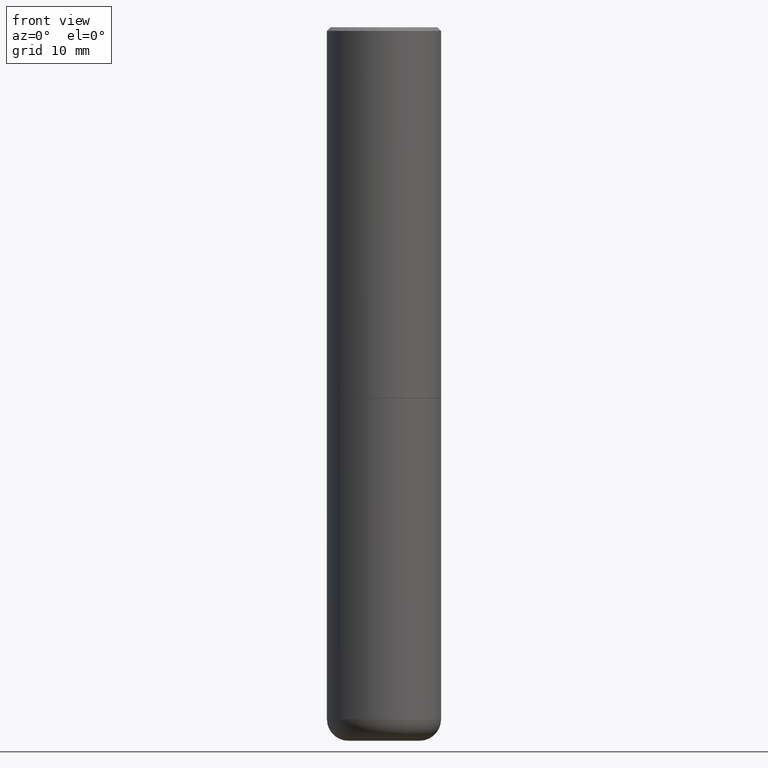
[diagram: clean part render]
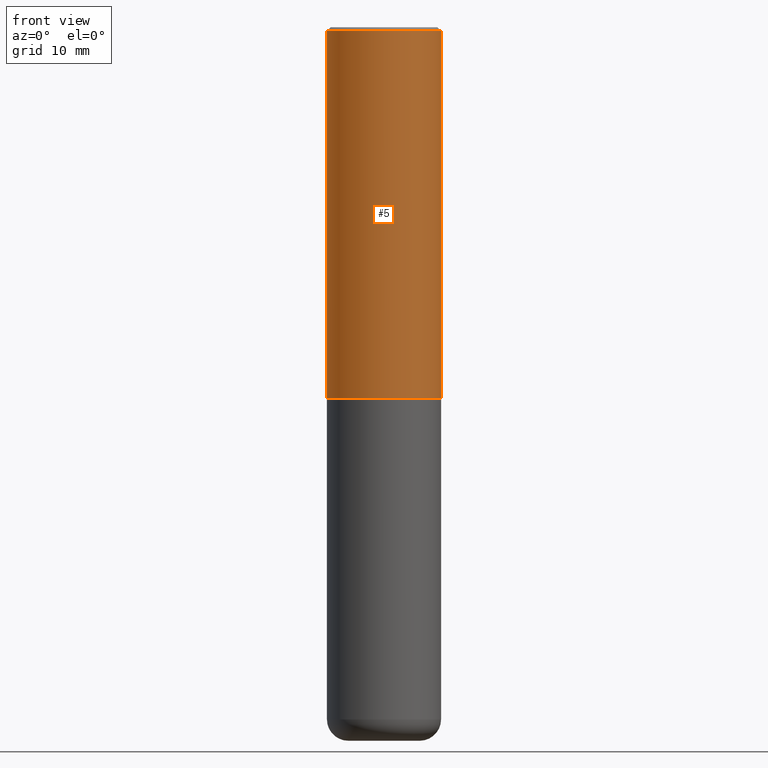
[diagram: same view with one face highlighted and labeled with its STEP entity id]
A machine part, front view. The second image highlights one B-rep face of the part: STEP entity #5.
In plain terms, the highlighted cylindrical surface (partial cylindrical patch) has radius 7.9997 mm, axis along (-0, 0, 1).
Its self-contained STEP definition (entity closure, byte-faithful):
#5 = ADVANCED_FACE ( 'NONE', ( #23 ), #113, .T. ) ;
#8 = EDGE_LOOP ( 'NONE', ( #165, #135, #241, #230 ) ) ;
#23 = FACE_OUTER_BOUND ( 'NONE', #8, .T. ) ;
#26 = DIRECTION ( 'NONE',  ( -2.445468806185136877E-29, 3.491481338843145188E-15, 1.000000000000000000 ) ) ;
#54 = EDGE_CURVE ( 'NONE', #118, #183, #61, .T. ) ;
#61 = LINE ( 'NONE', #376, #317 ) ;
#64 = DIRECTION ( 'NONE',  ( 1.000000000000000000, -6.982962677686266711E-15, 0.000000000000000000 ) ) ;
#67 = CARTESIAN_POINT ( 'NONE',  ( 0.3149499999999999522, -2.230543471175006661E-15, -0.02000000000000006981 ) ) ;
#72 = CARTESIAN_POINT ( 'NONE',  ( 5.003918271216025517E-29, -7.144269115540843617E-15, -2.046199999999999797 ) ) ;
#74 = DIRECTION ( 'NONE',  ( -2.445468806185136597E-29, 3.491481338843145583E-15, 1.000000000000000000 ) ) ;
#92 = VERTEX_POINT ( 'NONE', #221 ) ;
#94 = EDGE_CURVE ( 'NONE', #92, #171, #146, .T. ) ;
#96 = DIRECTION ( 'NONE',  ( 1.000000000000000000, -6.982962677686267499E-15, 0.000000000000000000 ) ) ;
#113 = CYLINDRICAL_SURFACE ( 'NONE', #129, 0.3149500000000001743 ) ;
#118 = VERTEX_POINT ( 'NONE', #327 ) ;
#129 = AXIS2_PLACEMENT_3D ( 'NONE', #257, #282, #415 ) ;
#135 = ORIENTED_EDGE ( 'NONE', *, *, #311, .T. ) ;
#146 = LINE ( 'NONE', #342, #322 ) ;
#165 = ORIENTED_EDGE ( 'NONE', *, *, #94, .F. ) ;
#171 = VERTEX_POINT ( 'NONE', #349 ) ;
#183 = VERTEX_POINT ( 'NONE', #67 ) ;
#185 = DIRECTION ( 'NONE',  ( -2.445468806185136877E-29, 3.491481338843145188E-15, 1.000000000000000000 ) ) ;
#187 = AXIS2_PLACEMENT_3D ( 'NONE', #72, #74, #96 ) ;
#202 = EDGE_CURVE ( 'NONE', #171, #183, #336, .T. ) ;
#221 = CARTESIAN_POINT ( 'NONE',  ( -0.3149500000000002853, -1.369195024882414317E-15, -2.046199999999999797 ) ) ;
#230 = ORIENTED_EDGE ( 'NONE', *, *, #202, .F. ) ;
#241 = ORIENTED_EDGE ( 'NONE', *, *, #54, .T. ) ;
#257 = CARTESIAN_POINT ( 'NONE',  ( 0.000000000000000000, 0.000000000000000000, 0.000000000000000000 ) ) ;
#282 = DIRECTION ( 'NONE',  ( -2.445468806185136597E-29, 3.491481338843145583E-15, 1.000000000000000000 ) ) ;
#296 = CIRCLE ( 'NONE', #187, 0.3149500000000002853 ) ;
#311 = EDGE_CURVE ( 'NONE', #92, #118, #296, .T. ) ;
#317 = VECTOR ( 'NONE', #26, 39.37007874015748143 ) ;
#322 = VECTOR ( 'NONE', #185, 39.37007874015748143 ) ;
#326 = CARTESIAN_POINT ( 'NONE',  ( 4.890937612370289799E-31, -6.982962677686315028E-17, -0.02000000000000006981 ) ) ;
#327 = CARTESIAN_POINT ( 'NONE',  ( 0.3149500000000002853, -9.343553210878135066E-15, -2.046199999999999797 ) ) ;
#336 = CIRCLE ( 'NONE', #417, 0.3149499999999999522 ) ;
#342 = CARTESIAN_POINT ( 'NONE',  ( -0.3149500000000001743, 2.237854346276436774E-15, -1.549218606675783237E-29 ) ) ;
#349 = CARTESIAN_POINT ( 'NONE',  ( -0.3149499999999999522, 2.129454468560426178E-15, -0.02000000000000006981 ) ) ;
#376 = CARTESIAN_POINT ( 'NONE',  ( 0.3149500000000001743, -2.199284095337290660E-15, 1.535751875536930690E-29 ) ) ;
#415 = DIRECTION ( 'NONE',  ( 1.000000000000000000, -6.982962677686265922E-15, 4.876176775795935232E-29 ) ) ;
#417 = AXIS2_PLACEMENT_3D ( 'NONE', #326, #418, #64 ) ;
#418 = DIRECTION ( 'NONE',  ( -2.445468806185136597E-29, 3.491481338843145583E-15, 1.000000000000000000 ) ) ;